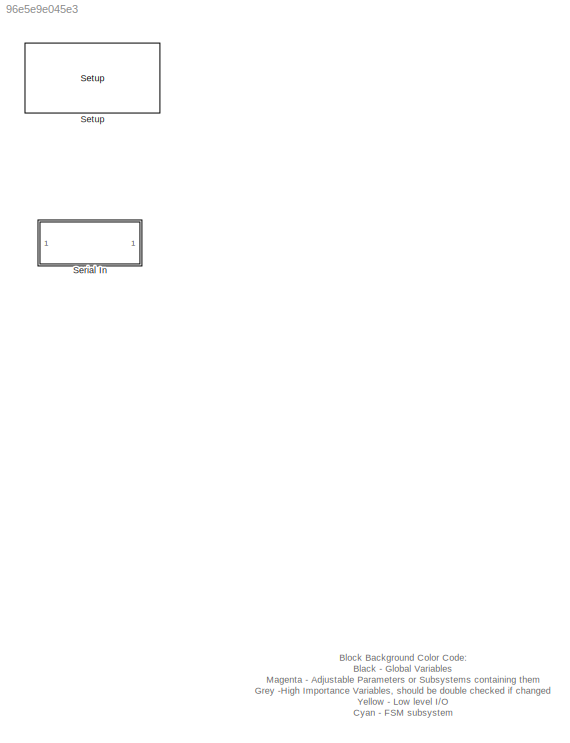
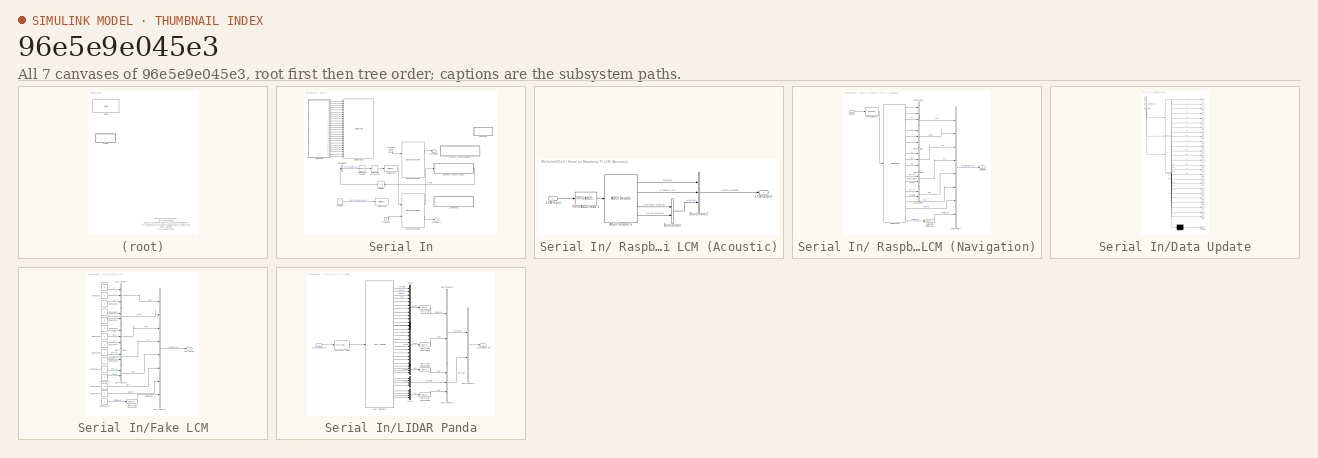
[diagram: thumbnail index - all 7 canvases of the model, root first then tree order]
MODEL slx_96e5e9e045e3
KIND model
BLOCK [SubSystem] Serial In
  Ports = []
  RequestExecContextInheritance = off
BLOCK [SubSystem] Serial In/ Raspberry Pi LCM (Acoustic)
  Ports = [1, 1]
  RequestExecContextInheritance = off
BLOCK [Reference] Serial In/ Raspberry Pi LCM (Acoustic)/ASCII Decode 6  REF=xpcseriallib/ASCII Decode 
  Ports = [1, 4]
  SourceBlock = xpcseriallib/ASCII Decode
  SourceType = ASCII Decode
  format = Deploy:%1u, Elapsed:%g, Bearing1:%g Bearing2:%g \r\n
  nvars = 4
  vartypes = {}
BLOCK [BusCreator] Serial In/ Raspberry Pi LCM (Acoustic)/Bus Creator
  DisplayOption = bar
  Inputs = 2
  Ports = [2, 1]
BLOCK [BusCreator] Serial In/ Raspberry Pi LCM (Acoustic)/Bus Creator1
  DisplayOption = bar
  Inputs = 3
  Ports = [3, 1]
BLOCK [Reference] Serial In/ Raspberry Pi LCM (Acoustic)/FIFO ASCII read 1  REF=xpcseriallib/FIFO ASCII read 
  Ports = [1, 1]
  SourceBlock = xpcseriallib/FIFO ASCII read
  SourceType = Asynchronous FIFO Block: reader
  enable = off
  header = {'Deploy:'}
  hold = Zero output if no new data
  maxsize = 1024
  outputtype = 8 bit uint null terminated
  sampletime = -1
  term = [13 10]
BLOCK [Inport] Serial In/ Raspberry Pi LCM (Acoustic)/LCM Input
  IconDisplay = Port number
BLOCK [Outport] Serial In/ Raspberry Pi LCM (Acoustic)/LCM Output
  IconDisplay = Port number
BLOCK [SubSystem] Serial In/ Raspberry Pi LCM (Navigation)
  Commented = on
  Ports = [1, 1]
  RequestExecContextInheritance = off
BLOCK [Reference] Serial In/ Raspberry Pi LCM (Navigation)/ASCII Decode 6  REF=xpcseriallib/ASCII Decode 
  Ports = [1, 16]
  SourceBlock = xpcseriallib/ASCII Decode
  SourceType = ASCII Decode
  format = P1:%f P2:%f P3:%f V1:%f V2:%f V3:%f E1:%f E2:%f E3:%f Pt1:%f Pt2:%f St1:%f St2:%f Start:%f Elapsed:%f RC:%d \r\n
  nvars = 16
  vartypes = {}
BLOCK [BusCreator] Serial In/ Raspberry Pi LCM (Navigation)/Bus Creator1
  DisplayOption = bar
  Inputs = 3
  Ports = [3, 1]
BLOCK [BusCreator] Serial In/ Raspberry Pi LCM (Navigation)/Bus Creator2
  DisplayOption = bar
  Inputs = 3
  Ports = [3, 1]
BLOCK [BusCreator] Serial In/ Raspberry Pi LCM (Navigation)/Bus Creator3
  DisplayOption = bar
  Inputs = 3
  Ports = [3, 1]
BLOCK [BusCreator] Serial In/ Raspberry Pi LCM (Navigation)/Bus Creator4
  DisplayOption = bar
  Inputs = 8
  Ports = [8, 1]
BLOCK [BusCreator] Serial In/ Raspberry Pi LCM (Navigation)/Bus Creator5
  DisplayOption = bar
  Inputs = 2
  Ports = [2, 1]
BLOCK [BusCreator] Serial In/ Raspberry Pi LCM (Navigation)/Bus Creator6
  DisplayOption = bar
  Inputs = 2
  Ports = [2, 1]
BLOCK [DataTypeConversion] Serial In/ Raspberry Pi LCM (Navigation)/Data Type Conversion
  OutDataTypeStr = double
  RndMeth = Floor
  SaturateOnIntegerOverflow = off
BLOCK [Reference] Serial In/ Raspberry Pi LCM (Navigation)/FIFO ASCII read 1  REF=xpcseriallib/FIFO ASCII read 
  Ports = [1, 1]
  SourceBlock = xpcseriallib/FIFO ASCII read
  SourceType = Asynchronous FIFO Block: reader
  enable = off
  header = {'P1:'}
  hold = Zero output if no new data
  maxsize = 1024
  outputtype = 8 bit uint null terminated
  sampletime = -1
  term = [13 10]
BLOCK [Inport] Serial In/ Raspberry Pi LCM (Navigation)/LCM Input
  IconDisplay = Port number
BLOCK [Outport] Serial In/ Raspberry Pi LCM (Navigation)/LCM Output
  IconDisplay = Port number
BLOCK [Reference] Serial In/ASCII Encode 1  REF=xpcseriallib/ASCII Encode 
  Ports = [1, 1]
  SourceBlock = xpcseriallib/ASCII Encode
  SourceType = ASCII Encode
  format = {"Activate":%d} \r\n
  maxlength = 20
  nvars = 1
  vartypes = { 'double' }
BLOCK [Reference] Serial In/ASCII Encode 2  REF=xpcseriallib/ASCII Encode 
  Commented = on
  Ports = [1, 1]
  SourceBlock = xpcseriallib/ASCII Encode
  SourceType = ASCII Encode
  format = SGTask:%d \r\n
  maxlength = 128
  nvars = 1
  vartypes = { 'double' }
BLOCK [Reference] Serial In/ASCII Encode 3  REF=xpcseriallib/ASCII Encode 
  Commented = on
  Ports = [26, 1]
  SourceBlock = xpcseriallib/ASCII Encode
  SourceType = ASCII Encode
  format = {"Valid":%d,"Mode":%d,"A":%f,"B":%f,"C":%f,"D":%f,"E":%f,"F":%f,"G":%f,"H":%f,"I":%f,"J":%f,"K":%f,"L":%f,"M":%f,"N":%f,"O":%f,"P":%f,"Q":%f,"R":%f,"S":%f,"T":%f,"U":%f,"V":%f,"W":%f,"X":%f} \r\n
  maxlength = 400
  nvars = 26
  vartypes = { 'double' }
BLOCK [Reference] Serial In/Baseboard Serial F  REF=xpcseriallib/Mainboard/Baseboard
Serial F
  Commented = through
  Ports = [2, 2]
  SourceBlock = xpcseriallib/Mainboard/Baseboard\nSerial F
  SourceType = Baseboard RS232 Send Receive
  automode1 = on
  automode2 = on
  baud1 = 115200
  baud2 = 115200
  config = Com1/Com3
  fifomode1 = 64 deep
  fifomode2 = 64 deep
  group = Basic Setup
  irqnum = 4
  ndata1 = 7
  ndata2 = 7
  nstop1 = 1
  nstop2 = 1
  parity1 = Even
  parity2 = Even
  port = 1
  rcvfifosize1 = 1024
  rcvfifosize2 = 1024
  rlevel1 = quarter full
  rlevel2 = 1
  saddr1 = 0x3f8
  saddr2 = 0x3e8
  xmtdatatype1 = 8 bit uint null terminated
  xmtdatatype2 = 8 bit uint null terminated
  xmtfifosize1 = 1024
  xmtfifosize2 = 1024
BLOCK [Reference] Serial In/Baseboard Serial F1  REF=xpcseriallib/Mainboard/Baseboard
Serial F
  Ports = [2, 2]
  SourceBlock = xpcseriallib/Mainboard/Baseboard\nSerial F
  SourceType = Baseboard RS232 Send Receive
  automode1 = on
  automode2 = on
  baud1 = 115200
  baud2 = 115200
  config = Com2/Com4
  fifomode1 = 64 deep
  fifomode2 = 64 deep
  group = Basic Setup
  irqnum = 4
  ndata1 = 7
  ndata2 = 7
  nstop1 = 1
  nstop2 = 1
  parity1 = Even
  parity2 = Even
  port = 2
  rcvfifosize1 = 1024
  rcvfifosize2 = 1024
  rlevel1 = quarter full
  rlevel2 = quarter full
  saddr1 = 0x3f8
  saddr2 = 0x3e8
  xmtdatatype1 = 8 bit uint null terminated
  xmtdatatype2 = 8 bit uint null terminated
  xmtfifosize1 = 1024
  xmtfifosize2 = 1024
BLOCK [BusSelector] Serial In/Bus Selector
  OutputSignals = Bearings.Horizontal Bearing
  Ports = [1, 1]
BLOCK [Reference] Serial In/Compare To Constant  REF=simulink/Logic and Bit
Operations/Compare
To Constant
  OutDataTypeStr = boolean
  Ports = [1, 1]
  SourceBlock = simulink/Logic and Bit\nOperations/Compare\nTo Constant
  SourceType = Compare To Constant
  ZeroCross = on
  const = 60
  relop = ==
BLOCK [Constant] Serial In/Constant
  Commented = on
BLOCK [DataTypeConversion] Serial In/Data Type Conversion
  OutDataTypeStr = double
  RndMeth = Floor
  SaturateOnIntegerOverflow = off
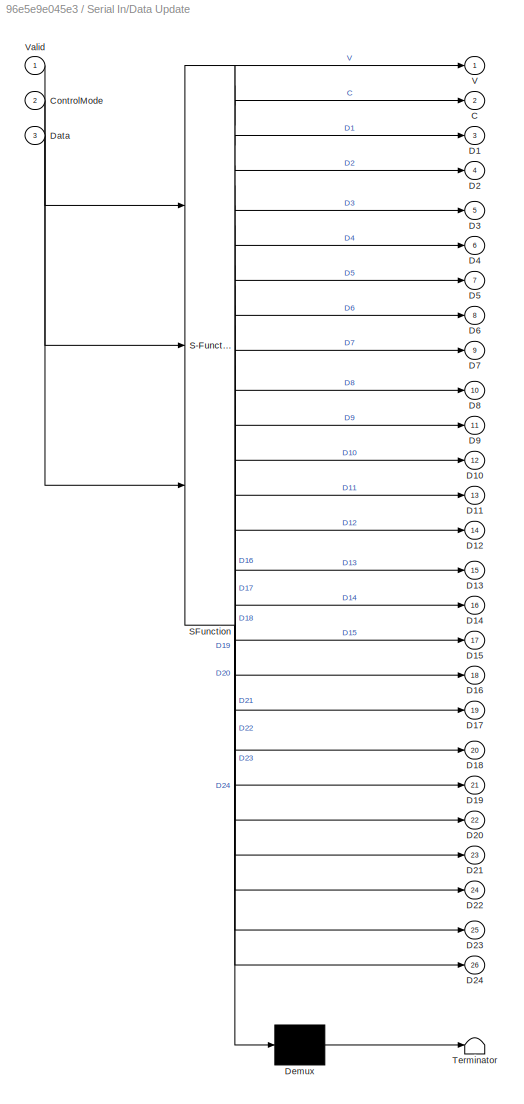
BLOCK [SubSystem] Serial In/Data Update
  Commented = on
  ErrorFcn = Stateflow.Translate.translate
  PermitHierarchicalResolution = ExplicitOnly
  Ports = [3, 26]
  RequestExecContextInheritance = off
  SFBlockType = MATLAB Function
  TreatAsAtomicUnit = on
BLOCK [Demux] Serial In/Data Update/ Demux 
  Outputs = 1
  Ports = [1, 1]
BLOCK [S-Function] Serial In/Data Update/ SFunction 
  EnableBusSupport = on
  FunctionName = sf_sfun
  PortCounts = [3 27]
  Ports = [3, 27]
  Tag = Stateflow S-Function RobotX_AcousticCommOnly 3
BLOCK [Terminator] Serial In/Data Update/ Terminator 
BLOCK [Outport] Serial In/Data Update/C
  IconDisplay = Port number
  Port = 2
BLOCK [Inport] Serial In/Data Update/ControlMode
  IconDisplay = Port number
  Port = 2
BLOCK [Outport] Serial In/Data Update/D1
  IconDisplay = Port number
  Port = 3
BLOCK [Outport] Serial In/Data Update/D10
  IconDisplay = Port number
  Port = 12
BLOCK [Outport] Serial In/Data Update/D11
  IconDisplay = Port number
  Port = 13
BLOCK [Outport] Serial In/Data Update/D12
  IconDisplay = Port number
  Port = 14
BLOCK [Outport] Serial In/Data Update/D13
  IconDisplay = Port number
  Port = 15
BLOCK [Outport] Serial In/Data Update/D14
  IconDisplay = Port number
  Port = 16
BLOCK [Outport] Serial In/Data Update/D15
  IconDisplay = Port number
  Port = 17
BLOCK [Outport] Serial In/Data Update/D16
  IconDisplay = Port number
  Port = 18
BLOCK [Outport] Serial In/Data Update/D17
  IconDisplay = Port number
  Port = 19
BLOCK [Outport] Serial In/Data Update/D18
  IconDisplay = Port number
  Port = 20
BLOCK [Outport] Serial In/Data Update/D19
  IconDisplay = Port number
  Port = 21
BLOCK [Outport] Serial In/Data Update/D2
  IconDisplay = Port number
  Port = 4
BLOCK [Outport] Serial In/Data Update/D20
  IconDisplay = Port number
  Port = 22
BLOCK [Outport] Serial In/Data Update/D21
  IconDisplay = Port number
  Port = 23
BLOCK [Outport] Serial In/Data Update/D22
  IconDisplay = Port number
  Port = 24
BLOCK [Outport] Serial In/Data Update/D23
  IconDisplay = Port number
  Port = 25
BLOCK [Outport] Serial In/Data Update/D24
  IconDisplay = Port number
  Port = 26
BLOCK [Outport] Serial In/Data Update/D3
  IconDisplay = Port number
  Port = 5
BLOCK [Outport] Serial In/Data Update/D4
  IconDisplay = Port number
  Port = 6
BLOCK [Outport] Serial In/Data Update/D5
  IconDisplay = Port number
  Port = 7
BLOCK [Outport] Serial In/Data Update/D6
  IconDisplay = Port number
  Port = 8
BLOCK [Outport] Serial In/Data Update/D7
  IconDisplay = Port number
  Port = 9
BLOCK [Outport] Serial In/Data Update/D8
  IconDisplay = Port number
  Port = 10
BLOCK [Outport] Serial In/Data Update/D9
  IconDisplay = Port number
  Port = 11
BLOCK [Inport] Serial In/Data Update/Data
  IconDisplay = Port number
  Port = 3
BLOCK [Outport] Serial In/Data Update/V
  IconDisplay = Port number
BLOCK [Inport] Serial In/Data Update/Valid
  IconDisplay = Port number
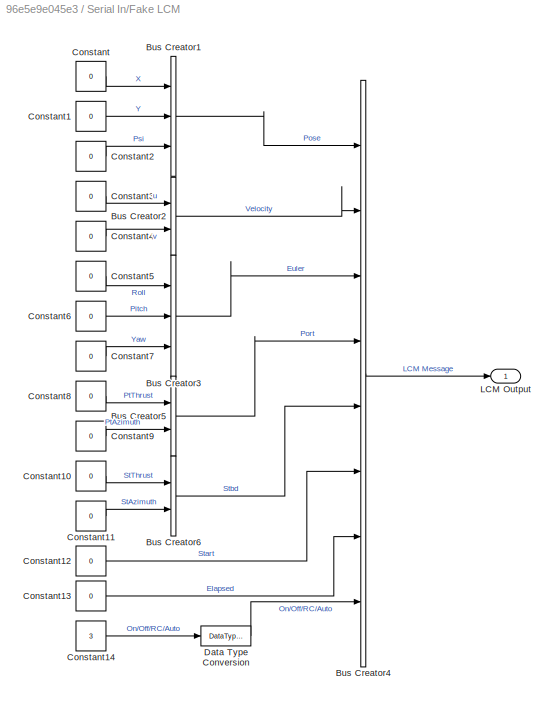
BLOCK [SubSystem] Serial In/Fake LCM
  Commented = on
  Ports = [0, 1]
  RequestExecContextInheritance = off
BLOCK [BusCreator] Serial In/Fake LCM/Bus Creator1
  DisplayOption = bar
  Inputs = 3
  Ports = [3, 1]
BLOCK [BusCreator] Serial In/Fake LCM/Bus Creator2
  DisplayOption = bar
  Inputs = 2
  Ports = [2, 1]
BLOCK [BusCreator] Serial In/Fake LCM/Bus Creator3
  DisplayOption = bar
  Inputs = 3
  Ports = [3, 1]
BLOCK [BusCreator] Serial In/Fake LCM/Bus Creator4
  DisplayOption = bar
  Inputs = 8
  Ports = [8, 1]
BLOCK [BusCreator] Serial In/Fake LCM/Bus Creator5
  DisplayOption = bar
  Inputs = 2
  Ports = [2, 1]
BLOCK [BusCreator] Serial In/Fake LCM/Bus Creator6
  DisplayOption = bar
  Inputs = 2
  Ports = [2, 1]
BLOCK [Constant] Serial In/Fake LCM/Constant
  Value = 0
BLOCK [Constant] Serial In/Fake LCM/Constant1
  Value = 0
BLOCK [Constant] Serial In/Fake LCM/Constant10
  Value = 0
BLOCK [Constant] Serial In/Fake LCM/Constant11
  Value = 0
BLOCK [Constant] Serial In/Fake LCM/Constant12
  Value = 0
BLOCK [Constant] Serial In/Fake LCM/Constant13
  Value = 0
BLOCK [Constant] Serial In/Fake LCM/Constant14
  Value = 3
BLOCK [Constant] Serial In/Fake LCM/Constant2
  Value = 0
BLOCK [Constant] Serial In/Fake LCM/Constant3
  Value = 0
BLOCK [Constant] Serial In/Fake LCM/Constant4
  Value = 0
BLOCK [Constant] Serial In/Fake LCM/Constant5
  Value = 0
BLOCK [Constant] Serial In/Fake LCM/Constant6
  Value = 0
BLOCK [Constant] Serial In/Fake LCM/Constant7
  Value = 0
BLOCK [Constant] Serial In/Fake LCM/Constant8
  Value = 0
BLOCK [Constant] Serial In/Fake LCM/Constant9
  Value = 0
BLOCK [DataTypeConversion] Serial In/Fake LCM/Data Type Conversion
  OutDataTypeStr = double
  RndMeth = Floor
  SaturateOnIntegerOverflow = off
BLOCK [Outport] Serial In/Fake LCM/LCM Output
  IconDisplay = Port number
BLOCK [Ground] Serial In/Ground1
  Commented = on
BLOCK [Ground] Serial In/Ground2
BLOCK [SubSystem] Serial In/LIDAR Panda
  Commented = on
  Ports = [1, 1]
  RequestExecContextInheritance = off
BLOCK [Reference] Serial In/LIDAR Panda/ASCII Decode 2  REF=xpcseriallib/ASCII Decode 
  Ports = [1, 36]
  SourceBlock = xpcseriallib/ASCII Decode
  SourceType = ASCII Decode
  format = A:%d B:%d C:%d E:%d F:%d G:%d H:%d I:%d J:%d K:%d L:%d M:%d N:%d O:%d P:%d Q:%d R:%d S:%d T:%d U:%d V:%d W:%d X:%d C1:%d C2:%d C3:%d C4:%d P1:%f P2:%f P3:%f P4:%f I1:%d I2:%d I3:%d I4:%d \r\n
  nvars = 36
  vartypes = {}
BLOCK [BusCreator] Serial In/LIDAR Panda/Bus Creator1
  DisplayOption = bar
  Inputs = 2
  Ports = [2, 1]
BLOCK [BusCreator] Serial In/LIDAR Panda/Bus Creator2
  DisplayOption = bar
  Inputs = 3
  Ports = [3, 1]
BLOCK [BusCreator] Serial In/LIDAR Panda/Bus Creator3
  DisplayOption = bar
  Inputs = 2
  Ports = [2, 1]
BLOCK [DataTypeConversion] Serial In/LIDAR Panda/Data Type Conversion
  OutDataTypeStr = double
  RndMeth = Floor
  SaturateOnIntegerOverflow = off
BLOCK [DataTypeConversion] Serial In/LIDAR Panda/Data Type Conversion1
  OutDataTypeStr = double
  RndMeth = Floor
  SaturateOnIntegerOverflow = off
BLOCK [DataTypeConversion] Serial In/LIDAR Panda/Data Type Conversion2
  OutDataTypeStr = double
  RndMeth = Floor
  SaturateOnIntegerOverflow = off
BLOCK [DataTypeConversion] Serial In/LIDAR Panda/Data Type Conversion3
  OutDataTypeStr = double
  RndMeth = Floor
  SaturateOnIntegerOverflow = off
BLOCK [Reference] Serial In/LIDAR Panda/FIFO ASCII read   REF=xpcseriallib/FIFO ASCII read 
  Ports = [1, 1]
  SourceBlock = xpcseriallib/FIFO ASCII read
  SourceType = Asynchronous FIFO Block: reader
  enable = off
  header = {'A:'}
  hold = Zero output if no new data
  maxsize = 1024
  outputtype = 8 bit uint null terminated
  sampletime = -1
  term = [13 10]
BLOCK [Inport] Serial In/LIDAR Panda/LIDAR Panda In
  IconDisplay = Port number
BLOCK [Outport] Serial In/LIDAR Panda/LIDAR Panda Out
  IconDisplay = Port number
BLOCK [Mux] Serial In/LIDAR Panda/Mux
  DisplayOption = bar
  Inputs = 12
  Ports = [12, 1]
BLOCK [Mux] Serial In/LIDAR Panda/Mux1
  DisplayOption = bar
  Ports = [4, 1]
BLOCK [Mux] Serial In/LIDAR Panda/Mux2
  DisplayOption = bar
  Inputs = 12
  Ports = [12, 1]
BLOCK [Mux] Serial In/LIDAR Panda/Mux3
  DisplayOption = bar
  Ports = [4, 1]
BLOCK [Mux] Serial In/LIDAR Panda/Mux4
  DisplayOption = bar
  Ports = [4, 1]
BLOCK [Terminator] Serial In/Terminator1
BLOCK [Terminator] Serial In/Terminator2
  Commented = on
BLOCK [UnitDelay] Serial In/Unit Delay
  InputProcessing = Elements as channels (sample based)
  SampleTime = -1
BLOCK [Reference] Setup  REF=speedgoatlib_IO102/Setup
  Ports = []
  SourceBlock = speedgoatlib_IO102/Setup
  SourceType = setup_IO102
  adChannel = 16
  adChannelMode = Multiple-channel (enter number of channels below)
  adCoupling = Differential
  cal = off
  daChannel = [1,2,3,4]
  daInitValue = [0]
  daReset = [1]
  diChannel = [1,2,3,4,5,6,7,8]
  doChannel = [1,2,3,4,5,6,7,8]
  doInitValue = [0]
  doReset = [1]
  group = Digital output setup
  id = 1
  pciSlot = -1
  range = +-5V
ANNOTATION (root): Block Background Color Code: Black - Global Variables Magenta - Adjustable Parameters or Subsystems containing them Grey -High Importance Variables, should be double checked if changed Yellow - Low level I/O Cyan - FSM subsystem Light Blue - Conditional Selector Block Dark Green - Task Enablers Orange - Output Selectors Green - Signal Bussing Blocks Red - Logic blocks. Determine signals for output...<+28ch>
LINE Serial In/ Raspberry Pi LCM (Acoustic)/ASCII Decode 6:1 -> Serial In/ Raspberry Pi LCM (Acoustic)/Bus Creator1:1
LINE Serial In/ Raspberry Pi LCM (Acoustic)/ASCII Decode 6:2 -> Serial In/ Raspberry Pi LCM (Acoustic)/Bus Creator1:2
LINE Serial In/ Raspberry Pi LCM (Acoustic)/ASCII Decode 6:3 -> Serial In/ Raspberry Pi LCM (Acoustic)/Bus Creator:1
LINE Serial In/ Raspberry Pi LCM (Acoustic)/ASCII Decode 6:4 -> Serial In/ Raspberry Pi LCM (Acoustic)/Bus Creator:2
LINE Serial In/ Raspberry Pi LCM (Acoustic)/Bus Creator1:1 -> Serial In/ Raspberry Pi LCM (Acoustic)/LCM Output:1
LINE Serial In/ Raspberry Pi LCM (Acoustic)/Bus Creator:1 -> Serial In/ Raspberry Pi LCM (Acoustic)/Bus Creator1:3
LINE Serial In/ Raspberry Pi LCM (Acoustic)/FIFO ASCII read 1:1 -> Serial In/ Raspberry Pi LCM (Acoustic)/ASCII Decode 6:1
LINE Serial In/ Raspberry Pi LCM (Acoustic)/LCM Input:1 -> Serial In/ Raspberry Pi LCM (Acoustic)/FIFO ASCII read 1:1
LINE Serial In/ Raspberry Pi LCM (Acoustic):1 -> Serial In/Unit Delay:1
LINE Serial In/ Raspberry Pi LCM (Navigation)/ASCII Decode 6:1 -> Serial In/ Raspberry Pi LCM (Navigation)/Bus Creator1:1
LINE Serial In/ Raspberry Pi LCM (Navigation)/ASCII Decode 6:10 -> Serial In/ Raspberry Pi LCM (Navigation)/Bus Creator5:1
LINE Serial In/ Raspberry Pi LCM (Navigation)/ASCII Decode 6:11 -> Serial In/ Raspberry Pi LCM (Navigation)/Bus Creator5:2
LINE Serial In/ Raspberry Pi LCM (Navigation)/ASCII Decode 6:12 -> Serial In/ Raspberry Pi LCM (Navigation)/Bus Creator6:1
LINE Serial In/ Raspberry Pi LCM (Navigation)/ASCII Decode 6:13 -> Serial In/ Raspberry Pi LCM (Navigation)/Bus Creator6:2
LINE Serial In/ Raspberry Pi LCM (Navigation)/ASCII Decode 6:14 -> Serial In/ Raspberry Pi LCM (Navigation)/Bus Creator4:6
LINE Serial In/ Raspberry Pi LCM (Navigation)/ASCII Decode 6:15 -> Serial In/ Raspberry Pi LCM (Navigation)/Bus Creator4:7
LINE Serial In/ Raspberry Pi LCM (Navigation)/ASCII Decode 6:16 -> Serial In/ Raspberry Pi LCM (Navigation)/Data Type Conversion:1
LINE Serial In/ Raspberry Pi LCM (Navigation)/ASCII Decode 6:2 -> Serial In/ Raspberry Pi LCM (Navigation)/Bus Creator1:2
LINE Serial In/ Raspberry Pi LCM (Navigation)/ASCII Decode 6:3 -> Serial In/ Raspberry Pi LCM (Navigation)/Bus Creator1:3
LINE Serial In/ Raspberry Pi LCM (Navigation)/ASCII Decode 6:4 -> Serial In/ Raspberry Pi LCM (Navigation)/Bus Creator2:1
LINE Serial In/ Raspberry Pi LCM (Navigation)/ASCII Decode 6:5 -> Serial In/ Raspberry Pi LCM (Navigation)/Bus Creator2:2
LINE Serial In/ Raspberry Pi LCM (Navigation)/ASCII Decode 6:6 -> Serial In/ Raspberry Pi LCM (Navigation)/Bus Creator2:3
LINE Serial In/ Raspberry Pi LCM (Navigation)/ASCII Decode 6:7 -> Serial In/ Raspberry Pi LCM (Navigation)/Bus Creator3:1
LINE Serial In/ Raspberry Pi LCM (Navigation)/ASCII Decode 6:8 -> Serial In/ Raspberry Pi LCM (Navigation)/Bus Creator3:2
LINE Serial In/ Raspberry Pi LCM (Navigation)/ASCII Decode 6:9 -> Serial In/ Raspberry Pi LCM (Navigation)/Bus Creator3:3
LINE Serial In/ Raspberry Pi LCM (Navigation)/Bus Creator1:1 -> Serial In/ Raspberry Pi LCM (Navigation)/Bus Creator4:1
LINE Serial In/ Raspberry Pi LCM (Navigation)/Bus Creator2:1 -> Serial In/ Raspberry Pi LCM (Navigation)/Bus Creator4:2
LINE Serial In/ Raspberry Pi LCM (Navigation)/Bus Creator3:1 -> Serial In/ Raspberry Pi LCM (Navigation)/Bus Creator4:3
LINE Serial In/ Raspberry Pi LCM (Navigation)/Bus Creator4:1 -> Serial In/ Raspberry Pi LCM (Navigation)/LCM Output:1
LINE Serial In/ Raspberry Pi LCM (Navigation)/Bus Creator5:1 -> Serial In/ Raspberry Pi LCM (Navigation)/Bus Creator4:4
LINE Serial In/ Raspberry Pi LCM (Navigation)/Bus Creator6:1 -> Serial In/ Raspberry Pi LCM (Navigation)/Bus Creator4:5
LINE Serial In/ Raspberry Pi LCM (Navigation)/Data Type Conversion:1 -> Serial In/ Raspberry Pi LCM (Navigation)/Bus Creator4:8
LINE Serial In/ Raspberry Pi LCM (Navigation)/FIFO ASCII read 1:1 -> Serial In/ Raspberry Pi LCM (Navigation)/ASCII Decode 6:1
LINE Serial In/ Raspberry Pi LCM (Navigation)/LCM Input:1 -> Serial In/ Raspberry Pi LCM (Navigation)/FIFO ASCII read 1:1
LINE Serial In/ASCII Encode 1:1 -> Serial In/Baseboard Serial F1:1
LINE Serial In/Baseboard Serial F1:1 -> Serial In/ Raspberry Pi LCM (Acoustic):1
LINE Serial In/Baseboard Serial F1:2 -> Serial In/Terminator1:1
LINE Serial In/Baseboard Serial F:1 -> Serial In/Terminator2:1
LINE Serial In/Bus Selector:1 -> Serial In/Compare To Constant:1
LINE Serial In/Compare To Constant:1 -> Serial In/Data Type Conversion:1
LINE Serial In/Constant:1 -> Serial In/ASCII Encode 2:1
LINE Serial In/Data Type Conversion:1 -> Serial In/ASCII Encode 1:1
LINE Serial In/Data Update:1 -> Serial In/ASCII Encode 3:1
LINE Serial In/Data Update:10 -> Serial In/ASCII Encode 3:10
LINE Serial In/Data Update:11 -> Serial In/ASCII Encode 3:11
LINE Serial In/Data Update:12 -> Serial In/ASCII Encode 3:12
LINE Serial In/Data Update:13 -> Serial In/ASCII Encode 3:13
LINE Serial In/Data Update:14 -> Serial In/ASCII Encode 3:14
LINE Serial In/Data Update:15 -> Serial In/ASCII Encode 3:15
LINE Serial In/Data Update:16 -> Serial In/ASCII Encode 3:16
LINE Serial In/Data Update:17 -> Serial In/ASCII Encode 3:17
LINE Serial In/Data Update:18 -> Serial In/ASCII Encode 3:18
LINE Serial In/Data Update:19 -> Serial In/ASCII Encode 3:19
LINE Serial In/Data Update:2 -> Serial In/ASCII Encode 3:2
LINE Serial In/Data Update:20 -> Serial In/ASCII Encode 3:20
LINE Serial In/Data Update:21 -> Serial In/ASCII Encode 3:21
LINE Serial In/Data Update:22 -> Serial In/ASCII Encode 3:22
LINE Serial In/Data Update:23 -> Serial In/ASCII Encode 3:23
LINE Serial In/Data Update:24 -> Serial In/ASCII Encode 3:24
LINE Serial In/Data Update:25 -> Serial In/ASCII Encode 3:25
LINE Serial In/Data Update:26 -> Serial In/ASCII Encode 3:26
LINE Serial In/Data Update:3 -> Serial In/ASCII Encode 3:3
LINE Serial In/Data Update:4 -> Serial In/ASCII Encode 3:4
LINE Serial In/Data Update:5 -> Serial In/ASCII Encode 3:5
LINE Serial In/Data Update:6 -> Serial In/ASCII Encode 3:6
LINE Serial In/Data Update:7 -> Serial In/ASCII Encode 3:7
LINE Serial In/Data Update:8 -> Serial In/ASCII Encode 3:8
LINE Serial In/Data Update:9 -> Serial In/ASCII Encode 3:9
LINE Serial In/Fake LCM/Bus Creator1:1 -> Serial In/Fake LCM/Bus Creator4:1
LINE Serial In/Fake LCM/Bus Creator2:1 -> Serial In/Fake LCM/Bus Creator4:2
LINE Serial In/Fake LCM/Bus Creator3:1 -> Serial In/Fake LCM/Bus Creator4:3
LINE Serial In/Fake LCM/Bus Creator4:1 -> Serial In/Fake LCM/LCM Output:1
LINE Serial In/Fake LCM/Bus Creator5:1 -> Serial In/Fake LCM/Bus Creator4:4
LINE Serial In/Fake LCM/Bus Creator6:1 -> Serial In/Fake LCM/Bus Creator4:5
LINE Serial In/Fake LCM/Constant10:1 -> Serial In/Fake LCM/Bus Creator6:1
LINE Serial In/Fake LCM/Constant11:1 -> Serial In/Fake LCM/Bus Creator6:2
LINE Serial In/Fake LCM/Constant12:1 -> Serial In/Fake LCM/Bus Creator4:6
LINE Serial In/Fake LCM/Constant13:1 -> Serial In/Fake LCM/Bus Creator4:7
LINE Serial In/Fake LCM/Constant14:1 -> Serial In/Fake LCM/Data Type Conversion:1
LINE Serial In/Fake LCM/Constant1:1 -> Serial In/Fake LCM/Bus Creator1:2
LINE Serial In/Fake LCM/Constant2:1 -> Serial In/Fake LCM/Bus Creator1:3
LINE Serial In/Fake LCM/Constant3:1 -> Serial In/Fake LCM/Bus Creator2:1
LINE Serial In/Fake LCM/Constant4:1 -> Serial In/Fake LCM/Bus Creator2:2
LINE Serial In/Fake LCM/Constant5:1 -> Serial In/Fake LCM/Bus Creator3:1
LINE Serial In/Fake LCM/Constant6:1 -> Serial In/Fake LCM/Bus Creator3:2
LINE Serial In/Fake LCM/Constant7:1 -> Serial In/Fake LCM/Bus Creator3:3
LINE Serial In/Fake LCM/Constant8:1 -> Serial In/Fake LCM/Bus Creator5:1
LINE Serial In/Fake LCM/Constant9:1 -> Serial In/Fake LCM/Bus Creator5:2
LINE Serial In/Fake LCM/Constant:1 -> Serial In/Fake LCM/Bus Creator1:1
LINE Serial In/Fake LCM/Data Type Conversion:1 -> Serial In/Fake LCM/Bus Creator4:8
LINE Serial In/Ground1:1 -> Serial In/Baseboard Serial F:1
LINE Serial In/Ground2:1 -> Serial In/Baseboard Serial F1:2
LINE Serial In/LIDAR Panda/ASCII Decode 2:1 -> Serial In/LIDAR Panda/Mux:1
LINE Serial In/LIDAR Panda/ASCII Decode 2:10 -> Serial In/LIDAR Panda/Mux:10
LINE Serial In/LIDAR Panda/ASCII Decode 2:11 -> Serial In/LIDAR Panda/Mux:11
LINE Serial In/LIDAR Panda/ASCII Decode 2:12 -> Serial In/LIDAR Panda/Mux:12
LINE Serial In/LIDAR Panda/ASCII Decode 2:13 -> Serial In/LIDAR Panda/Mux2:1
LINE Serial In/LIDAR Panda/ASCII Decode 2:14 -> Serial In/LIDAR Panda/Mux2:2
LINE Serial In/LIDAR Panda/ASCII Decode 2:15 -> Serial In/LIDAR Panda/Mux2:3
LINE Serial In/LIDAR Panda/ASCII Decode 2:16 -> Serial In/LIDAR Panda/Mux2:4
LINE Serial In/LIDAR Panda/ASCII Decode 2:17 -> Serial In/LIDAR Panda/Mux2:5
LINE Serial In/LIDAR Panda/ASCII Decode 2:18 -> Serial In/LIDAR Panda/Mux2:6
LINE Serial In/LIDAR Panda/ASCII Decode 2:19 -> Serial In/LIDAR Panda/Mux2:7
LINE Serial In/LIDAR Panda/ASCII Decode 2:2 -> Serial In/LIDAR Panda/Mux:2
LINE Serial In/LIDAR Panda/ASCII Decode 2:20 -> Serial In/LIDAR Panda/Mux2:8
LINE Serial In/LIDAR Panda/ASCII Decode 2:21 -> Serial In/LIDAR Panda/Mux2:9
LINE Serial In/LIDAR Panda/ASCII Decode 2:22 -> Serial In/LIDAR Panda/Mux2:10
LINE Serial In/LIDAR Panda/ASCII Decode 2:23 -> Serial In/LIDAR Panda/Mux2:11
LINE Serial In/LIDAR Panda/ASCII Decode 2:24 -> Serial In/LIDAR Panda/Mux2:12
LINE Serial In/LIDAR Panda/ASCII Decode 2:25 -> Serial In/LIDAR Panda/Mux1:1
LINE Serial In/LIDAR Panda/ASCII Decode 2:26 -> Serial In/LIDAR Panda/Mux1:2
LINE Serial In/LIDAR Panda/ASCII Decode 2:27 -> Serial In/LIDAR Panda/Mux1:3
LINE Serial In/LIDAR Panda/ASCII Decode 2:28 -> Serial In/LIDAR Panda/Mux1:4
LINE Serial In/LIDAR Panda/ASCII Decode 2:29 -> Serial In/LIDAR Panda/Mux3:1
LINE Serial In/LIDAR Panda/ASCII Decode 2:3 -> Serial In/LIDAR Panda/Mux:3
LINE Serial In/LIDAR Panda/ASCII Decode 2:30 -> Serial In/LIDAR Panda/Mux3:2
LINE Serial In/LIDAR Panda/ASCII Decode 2:31 -> Serial In/LIDAR Panda/Mux3:3
LINE Serial In/LIDAR Panda/ASCII Decode 2:32 -> Serial In/LIDAR Panda/Mux3:4
LINE Serial In/LIDAR Panda/ASCII Decode 2:33 -> Serial In/LIDAR Panda/Mux4:1
LINE Serial In/LIDAR Panda/ASCII Decode 2:34 -> Serial In/LIDAR Panda/Mux4:2
LINE Serial In/LIDAR Panda/ASCII Decode 2:35 -> Serial In/LIDAR Panda/Mux4:3
LINE Serial In/LIDAR Panda/ASCII Decode 2:36 -> Serial In/LIDAR Panda/Mux4:4
LINE Serial In/LIDAR Panda/ASCII Decode 2:4 -> Serial In/LIDAR Panda/Mux:4
LINE Serial In/LIDAR Panda/ASCII Decode 2:5 -> Serial In/LIDAR Panda/Mux:5
LINE Serial In/LIDAR Panda/ASCII Decode 2:6 -> Serial In/LIDAR Panda/Mux:6
LINE Serial In/LIDAR Panda/ASCII Decode 2:7 -> Serial In/LIDAR Panda/Mux:7
LINE Serial In/LIDAR Panda/ASCII Decode 2:8 -> Serial In/LIDAR Panda/Mux:8
LINE Serial In/LIDAR Panda/ASCII Decode 2:9 -> Serial In/LIDAR Panda/Mux:9
LINE Serial In/LIDAR Panda/Bus Creator1:1 -> Serial In/LIDAR Panda/Bus Creator3:1
LINE Serial In/LIDAR Panda/Bus Creator2:1 -> Serial In/LIDAR Panda/Bus Creator3:2
LINE Serial In/LIDAR Panda/Bus Creator3:1 -> Serial In/LIDAR Panda/LIDAR Panda Out:1
LINE Serial In/LIDAR Panda/Data Type Conversion1:1 -> Serial In/LIDAR Panda/Bus Creator1:2
LINE Serial In/LIDAR Panda/Data Type Conversion2:1 -> Serial In/LIDAR Panda/Bus Creator2:1
LINE Serial In/LIDAR Panda/Data Type Conversion3:1 -> Serial In/LIDAR Panda/Bus Creator2:3
LINE Serial In/LIDAR Panda/Data Type Conversion:1 -> Serial In/LIDAR Panda/Bus Creator1:1
LINE Serial In/LIDAR Panda/FIFO ASCII read :1 -> Serial In/LIDAR Panda/ASCII Decode 2:1
LINE Serial In/LIDAR Panda/LIDAR Panda In:1 -> Serial In/LIDAR Panda/FIFO ASCII read :1
LINE Serial In/LIDAR Panda/Mux1:1 -> Serial In/LIDAR Panda/Data Type Conversion2:1
LINE Serial In/LIDAR Panda/Mux2:1 -> Serial In/LIDAR Panda/Data Type Conversion1:1
LINE Serial In/LIDAR Panda/Mux3:1 -> Serial In/LIDAR Panda/Bus Creator2:2
LINE Serial In/LIDAR Panda/Mux4:1 -> Serial In/LIDAR Panda/Data Type Conversion3:1
LINE Serial In/LIDAR Panda/Mux:1 -> Serial In/LIDAR Panda/Data Type Conversion:1
LINE Serial In/Unit Delay:1 -> Serial In/Bus Selector:1
